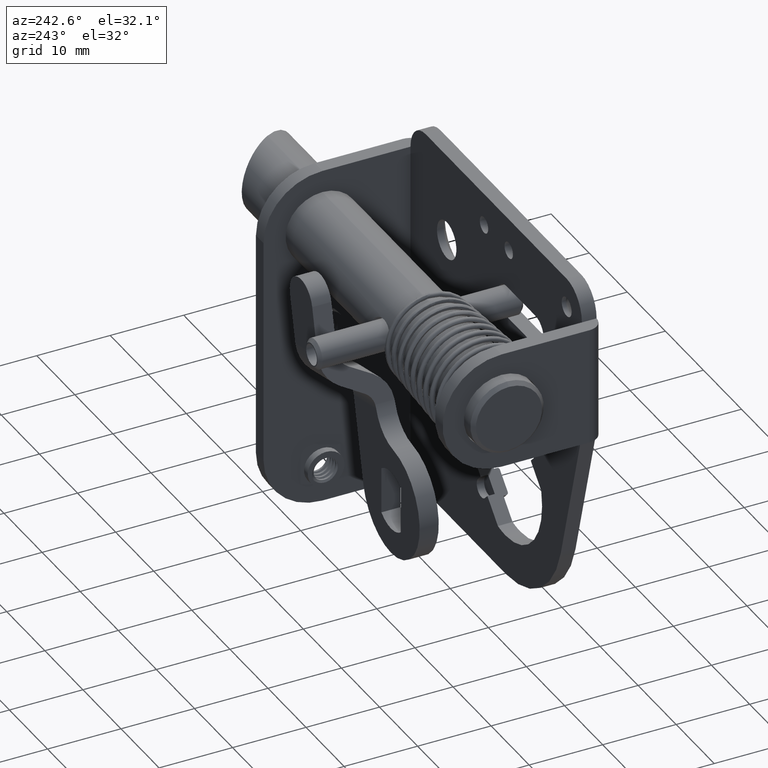
[diagram: clean part render]
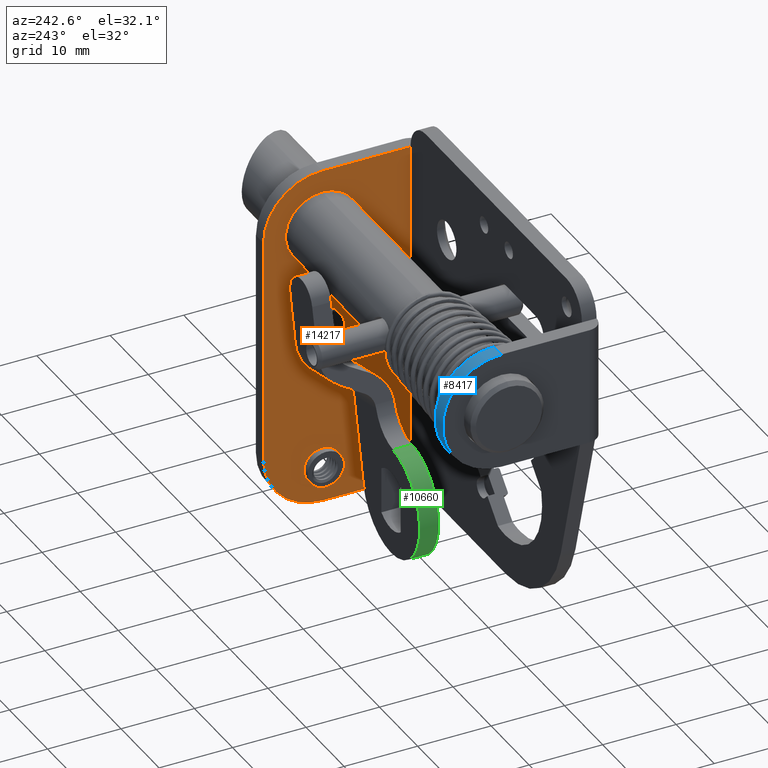
[diagram: same view with three faces highlighted in distinct colors, each labeled with its STEP entity id]
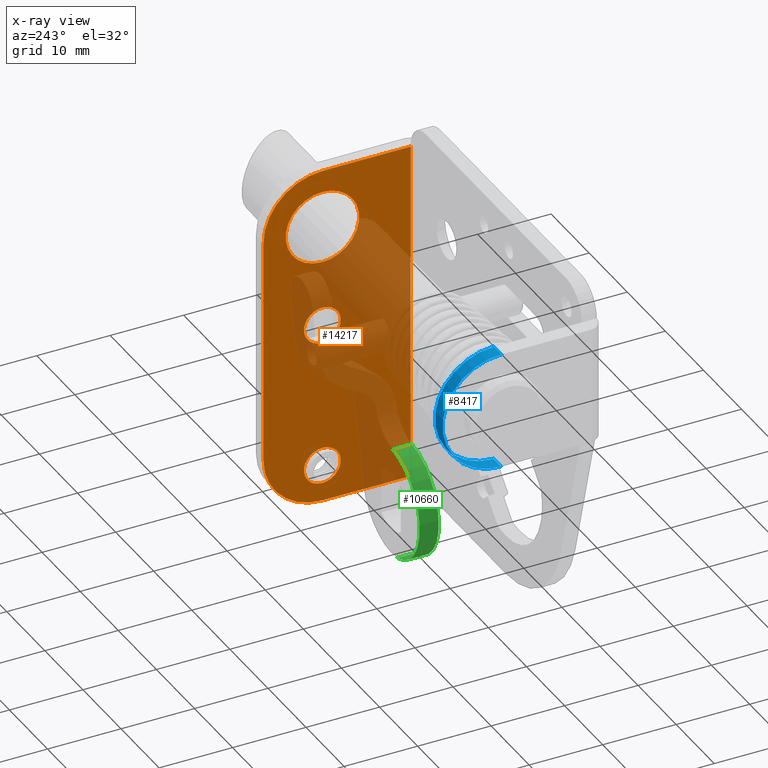
[diagram: x-ray of the same camera — body ghosted, the three highlighted faces saturated]
A machine part, auxiliary view with three faces highlighted in distinct colors.
The next image is the same camera in x-ray (body ghosted, the three faces saturated) — at least one of them is partly hidden behind the body in this view.
Their STEP definitions:

[orange] entity #14217 — the highlighted planar face has unit normal (1, -0, 0).
#170 = CARTESIAN_POINT ( 'NONE',  ( -44.64999999990504900, -1.622483468336492400E-014, -1.749999999682359900 ) ) ;
#303 = VERTEX_POINT ( 'NONE', #8128 ) ;
#333 = LINE ( 'NONE', #11459, #4354 ) ;
#425 = AXIS2_PLACEMENT_3D ( 'NONE', #11179, #3848, #12416 ) ;
#483 = ORIENTED_EDGE ( 'NONE', *, *, #7564, .F. ) ;
#751 = EDGE_CURVE ( 'NONE', #2405, #5535, #11747, .T. ) ;
#1086 = ORIENTED_EDGE ( 'NONE', *, *, #13986, .F. ) ;
#1097 = FACE_OUTER_BOUND ( 'NONE', #4045, .T. ) ;
#1148 = CARTESIAN_POINT ( 'NONE',  ( -44.64999999990504900, -1.734723475976804600E-014, -20.74999999973155000 ) ) ;
#1341 = CIRCLE ( 'NONE', #13643, 2.500000000000002200 ) ;
#1489 = FACE_BOUND ( 'NONE', #13711, .T. ) ;
#1520 = LINE ( 'NONE', #11480, #8026 ) ;
#1742 = CARTESIAN_POINT ( 'NONE',  ( -44.64999999990504900, -1.734723475976804600E-014, -40.74999999973114500 ) ) ;
#1780 = CARTESIAN_POINT ( 'NONE',  ( -44.64999999990504900, -1.704107305998120800E-014, -43.24999999973115200 ) ) ;
#1846 = CIRCLE ( 'NONE', #6841, 2.499999999999998700 ) ;
#1870 = DIRECTION ( 'NONE',  ( -1.000000000000000000, 0.0000000000000000000, 0.0000000000000000000 ) ) ;
#1888 = VERTEX_POINT ( 'NONE', #14355 ) ;
#1943 = AXIS2_PLACEMENT_3D ( 'NONE', #1742, #10313, #2972 ) ;
#2026 = LINE ( 'NONE', #14728, #11796 ) ;
#2086 = ORIENTED_EDGE ( 'NONE', *, *, #4139, .T. ) ;
#2373 = DIRECTION ( 'NONE',  ( 0.0000000000000000000, 0.0000000000000000000, 1.000000000000000000 ) ) ;
#2405 = VERTEX_POINT ( 'NONE', #11198 ) ;
#2827 = DIRECTION ( 'NONE',  ( -1.000000000000000000, 0.0000000000000000000, 0.0000000000000000000 ) ) ;
#2897 = CARTESIAN_POINT ( 'NONE',  ( -44.64999999990504900, -1.734723475976804600E-014, -40.74999999973114500 ) ) ;
#2972 = DIRECTION ( 'NONE',  ( 0.0000000000000000000, 0.0000000000000000000, 1.000000000000000000 ) ) ;
#3085 = AXIS2_PLACEMENT_3D ( 'NONE', #4971, #13540, #6197 ) ;
#3460 = AXIS2_PLACEMENT_3D ( 'NONE', #9206, #1870, #10435 ) ;
#3660 = ORIENTED_EDGE ( 'NONE', *, *, #751, .T. ) ;
#3745 = EDGE_CURVE ( 'NONE', #4491, #11031, #1341, .T. ) ;
#3848 = DIRECTION ( 'NONE',  ( -1.000000000000000000, -0.0000000000000000000, -0.0000000000000000000 ) ) ;
#3983 = FACE_BOUND ( 'NONE', #11852, .T. ) ;
#4045 = EDGE_LOOP ( 'NONE', ( #13849, #8894, #11834, #5605, #483, #1086 ) ) ;
#4131 = DIRECTION ( 'NONE',  ( 0.0000000000000000000, 0.0000000000000000000, 1.000000000000000000 ) ) ;
#4139 = EDGE_CURVE ( 'NONE', #1888, #8718, #12050, .T. ) ;
#4155 = DIRECTION ( 'NONE',  ( -0.0000000000000000000, -0.0000000000000000000, -1.000000000000000000 ) ) ;
#4168 = ORIENTED_EDGE ( 'NONE', *, *, #13690, .T. ) ;
#4354 = VECTOR ( 'NONE', #7814, 1000.000000000000000 ) ;
#4355 = FACE_BOUND ( 'NONE', #15829, .T. ) ;
#4410 = EDGE_CURVE ( 'NONE', #10648, #13761, #1520, .T. ) ;
#4413 = PLANE ( 'NONE',  #5245 ) ;
#4491 = VERTEX_POINT ( 'NONE', #1780 ) ;
#4535 = CIRCLE ( 'NONE', #3085, 8.000000000000000000 ) ;
#4971 = CARTESIAN_POINT ( 'NONE',  ( -44.64999999990509800, 1.379278635749160100E-011, -37.75000000009934800 ) ) ;
#5245 = AXIS2_PLACEMENT_3D ( 'NONE', #5633, #11689, #15456 ) ;
#5482 = CARTESIAN_POINT ( 'NONE',  ( -44.64999999990509800, 1.379278635749160100E-011, -6.749999999995600000 ) ) ;
#5535 = VERTEX_POINT ( 'NONE', #6601 ) ;
#5605 = ORIENTED_EDGE ( 'NONE', *, *, #4410, .F. ) ;
#5633 = CARTESIAN_POINT ( 'NONE',  ( -44.64999999990509800, -985.9999999999860200, 1.250000000004400000 ) ) ;
#6145 = DIRECTION ( 'NONE',  ( 0.0000000000000000000, 1.000000000000000000, 0.0000000000000000000 ) ) ;
#6197 = DIRECTION ( 'NONE',  ( 0.0000000000000000000, 0.0000000000000000000, 1.000000000000000000 ) ) ;
#6601 = CARTESIAN_POINT ( 'NONE',  ( -44.64999999990504900, -1.734723475976804600E-014, -18.24999999973155000 ) ) ;
#6714 = DIRECTION ( 'NONE',  ( 0.0000000000000000000, 0.0000000000000000000, 1.000000000000000000 ) ) ;
#6716 = ORIENTED_EDGE ( 'NONE', *, *, #3745, .T. ) ;
#6841 = AXIS2_PLACEMENT_3D ( 'NONE', #1148, #9710, #2373 ) ;
#7012 = CARTESIAN_POINT ( 'NONE',  ( -44.64999999990509800, -7.999999999986229700, -6.749999999995600000 ) ) ;
#7082 = EDGE_CURVE ( 'NONE', #5535, #2405, #1846, .T. ) ;
#7192 = AXIS2_PLACEMENT_3D ( 'NONE', #10154, #2827, #11384 ) ;
#7564 = EDGE_CURVE ( 'NONE', #15466, #10648, #8934, .T. ) ;
#7604 = CARTESIAN_POINT ( 'NONE',  ( -44.64999999990509800, -7.999999999986229700, -37.75000000009934800 ) ) ;
#7781 = CIRCLE ( 'NONE', #1943, 2.500000000000002200 ) ;
#7814 = DIRECTION ( 'NONE',  ( -0.0000000000000000000, -0.0000000000000000000, -1.000000000000000000 ) ) ;
#8026 = VECTOR ( 'NONE', #4155, 1000.000000000000000 ) ;
#8128 = CARTESIAN_POINT ( 'NONE',  ( -44.64999999990509800, 1.377890856968378200E-011, -45.75000000009929800 ) ) ;
#8198 = VERTEX_POINT ( 'NONE', #7012 ) ;
#8718 = VERTEX_POINT ( 'NONE', #170 ) ;
#8769 = CIRCLE ( 'NONE', #10477, 8.000000000000000000 ) ;
#8894 = ORIENTED_EDGE ( 'NONE', *, *, #13479, .F. ) ;
#8934 = LINE ( 'NONE', #13676, #12950 ) ;
#8940 = VERTEX_POINT ( 'NONE', #7604 ) ;
#9206 = CARTESIAN_POINT ( 'NONE',  ( -44.64999999990504900, -1.561251128379124800E-014, -6.749999999682359900 ) ) ;
#9211 = CARTESIAN_POINT ( 'NONE',  ( -44.64999999990509800, 1.377890856968378200E-011, 1.250000000004400000 ) ) ;
#9710 = DIRECTION ( 'NONE',  ( -1.000000000000000000, -0.0000000000000000000, -0.0000000000000000000 ) ) ;
#9948 = EDGE_CURVE ( 'NONE', #303, #13761, #2026, .T. ) ;
#10154 = CARTESIAN_POINT ( 'NONE',  ( -44.64999999990504900, -1.561251128379124800E-014, -6.749999999682359900 ) ) ;
#10239 = EDGE_CURVE ( 'NONE', #11031, #4491, #7781, .T. ) ;
#10313 = DIRECTION ( 'NONE',  ( -1.000000000000000000, -0.0000000000000000000, -0.0000000000000000000 ) ) ;
#10435 = DIRECTION ( 'NONE',  ( 0.0000000000000000000, 0.0000000000000000000, 1.000000000000000000 ) ) ;
#10477 = AXIS2_PLACEMENT_3D ( 'NONE', #5482, #14053, #6714 ) ;
#10615 = ORIENTED_EDGE ( 'NONE', *, *, #7082, .T. ) ;
#10648 = VERTEX_POINT ( 'NONE', #10730 ) ;
#10730 = CARTESIAN_POINT ( 'NONE',  ( -44.64999999990509800, 12.00000000001368000, 1.250000000004400000 ) ) ;
#10815 = ORIENTED_EDGE ( 'NONE', *, *, #10239, .T. ) ;
#11031 = VERTEX_POINT ( 'NONE', #11730 ) ;
#11179 = CARTESIAN_POINT ( 'NONE',  ( -44.64999999990504900, -1.734723475976804600E-014, -20.74999999973155000 ) ) ;
#11198 = CARTESIAN_POINT ( 'NONE',  ( -44.64999999990504900, -1.704107305998120800E-014, -23.24999999973154600 ) ) ;
#11384 = DIRECTION ( 'NONE',  ( 0.0000000000000000000, 0.0000000000000000000, 1.000000000000000000 ) ) ;
#11459 = CARTESIAN_POINT ( 'NONE',  ( -44.64999999990509800, -7.999999999986229700, 1.250000000004400000 ) ) ;
#11460 = DIRECTION ( 'NONE',  ( -1.000000000000000000, -0.0000000000000000000, -0.0000000000000000000 ) ) ;
#11480 = CARTESIAN_POINT ( 'NONE',  ( -44.64999999990509800, 12.00000000001368000, -30.74999999973605100 ) ) ;
#11689 = DIRECTION ( 'NONE',  ( -1.000000000000000000, 0.0000000000000000000, 0.0000000000000000000 ) ) ;
#11730 = CARTESIAN_POINT ( 'NONE',  ( -44.64999999990504900, -1.734723475976804600E-014, -38.24999999973114500 ) ) ;
#11747 = CIRCLE ( 'NONE', #425, 2.499999999999998700 ) ;
#11796 = VECTOR ( 'NONE', #6145, 1000.000000000000000 ) ;
#11834 = ORIENTED_EDGE ( 'NONE', *, *, #9948, .T. ) ;
#11852 = EDGE_LOOP ( 'NONE', ( #10615, #3660 ) ) ;
#12050 = CIRCLE ( 'NONE', #3460, 5.000000000000000000 ) ;
#12134 = EDGE_CURVE ( 'NONE', #8198, #8940, #333, .T. ) ;
#12416 = DIRECTION ( 'NONE',  ( 0.0000000000000000000, 0.0000000000000000000, 1.000000000000000000 ) ) ;
#12950 = VECTOR ( 'NONE', #14922, 1000.000000000000000 ) ;
#13163 = CIRCLE ( 'NONE', #7192, 5.000000000000000000 ) ;
#13479 = EDGE_CURVE ( 'NONE', #303, #8940, #4535, .T. ) ;
#13540 = DIRECTION ( 'NONE',  ( -1.000000000000000000, -0.0000000000000000000, -0.0000000000000000000 ) ) ;
#13643 = AXIS2_PLACEMENT_3D ( 'NONE', #2897, #11460, #4131 ) ;
#13676 = CARTESIAN_POINT ( 'NONE',  ( -44.64999999990509800, -985.9999999999860200, 1.250000000004400000 ) ) ;
#13690 = EDGE_CURVE ( 'NONE', #8718, #1888, #13163, .T. ) ;
#13711 = EDGE_LOOP ( 'NONE', ( #2086, #4168 ) ) ;
#13761 = VERTEX_POINT ( 'NONE', #15088 ) ;
#13849 = ORIENTED_EDGE ( 'NONE', *, *, #12134, .T. ) ;
#13986 = EDGE_CURVE ( 'NONE', #8198, #15466, #8769, .T. ) ;
#14053 = DIRECTION ( 'NONE',  ( -1.000000000000000000, -0.0000000000000000000, -0.0000000000000000000 ) ) ;
#14217 = ADVANCED_FACE ( 'NONE', ( #1489, #3983, #4355, #1097 ), #4413, .F. ) ;
#14355 = CARTESIAN_POINT ( 'NONE',  ( -44.64999999990504900, -1.561251128379124800E-014, -11.74999999968236100 ) ) ;
#14728 = CARTESIAN_POINT ( 'NONE',  ( -44.64999999990509800, -985.9999999999860200, -45.75000000009929800 ) ) ;
#14922 = DIRECTION ( 'NONE',  ( 0.0000000000000000000, 1.000000000000000000, 0.0000000000000000000 ) ) ;
#15088 = CARTESIAN_POINT ( 'NONE',  ( -44.64999999990509800, 12.00000000001380100, -45.75000000009929800 ) ) ;
#15456 = DIRECTION ( 'NONE',  ( 0.0000000000000000000, 0.0000000000000000000, 1.000000000000000000 ) ) ;
#15466 = VERTEX_POINT ( 'NONE', #9211 ) ;
#15829 = EDGE_LOOP ( 'NONE', ( #10815, #6716 ) ) ;

[blue] entity #8417 — the highlighted cylindrical surface (partial cylindrical patch) has radius 8 mm, axis along (-1, 0, -0).
#266 = ORIENTED_EDGE ( 'NONE', *, *, #5949, .T. ) ;
#283 = DIRECTION ( 'NONE',  ( -1.474298114145788900E-012, 0.0000000000000000000, -1.000000000000000000 ) ) ;
#1457 = CARTESIAN_POINT ( 'NONE',  ( 0.3500000000707659800, 1.377890856968378200E-011, -14.74999999998060000 ) ) ;
#1490 = LINE ( 'NONE', #3318, #4738 ) ;
#1495 = EDGE_LOOP ( 'NONE', ( #266, #5099, #10750, #1599 ) ) ;
#1599 = ORIENTED_EDGE ( 'NONE', *, *, #11517, .T. ) ;
#2426 = CIRCLE ( 'NONE', #14984, 8.000000000000000000 ) ;
#2873 = VERTEX_POINT ( 'NONE', #4032 ) ;
#3239 = LINE ( 'NONE', #9330, #15520 ) ;
#3301 = EDGE_CURVE ( 'NONE', #12939, #2873, #3239, .T. ) ;
#3318 = CARTESIAN_POINT ( 'NONE',  ( 2.350000000071674800, 1.388993087214630100E-011, -14.74999999998360100 ) ) ;
#4032 = CARTESIAN_POINT ( 'NONE',  ( 0.3500000000707624800, 1.377890856968378200E-011, 1.249999999952392100 ) ) ;
#4714 = DIRECTION ( 'NONE',  ( 1.000000000000000000, -0.0000000000000000000, 2.168404344980090100E-016 ) ) ;
#4738 = VECTOR ( 'NONE', #10655, 1000.000000000000000 ) ;
#4772 = DIRECTION ( 'NONE',  ( 1.000000000000000000, 0.0000000000000000000, -1.505739977147185000E-012 ) ) ;
#5099 = ORIENTED_EDGE ( 'NONE', *, *, #7635, .T. ) ;
#5949 = EDGE_CURVE ( 'NONE', #11919, #9178, #1490, .T. ) ;
#6479 = CARTESIAN_POINT ( 'NONE',  ( 2.350000000071674800, 1.388993087214630100E-011, -14.74999999998360100 ) ) ;
#7618 = DIRECTION ( 'NONE',  ( -1.000000000000000000, 0.0000000000000000000, 1.474298114152519900E-012 ) ) ;
#7635 = EDGE_CURVE ( 'NONE', #9178, #12939, #2426, .T. ) ;
#8201 = AXIS2_PLACEMENT_3D ( 'NONE', #12054, #4714, #13281 ) ;
#8417 = ADVANCED_FACE ( 'NONE', ( #11600 ), #11236, .T. ) ;
#9178 = VERTEX_POINT ( 'NONE', #6479 ) ;
#9330 = CARTESIAN_POINT ( 'NONE',  ( 0.3500000000945280300, 1.388993087214630100E-011, 1.249999999946364000 ) ) ;
#10249 = AXIS2_PLACEMENT_3D ( 'NONE', #10934, #4772, #13339 ) ;
#10655 = DIRECTION ( 'NONE',  ( 1.000000000000000000, 0.0000000000000000000, -1.505739977147185000E-012 ) ) ;
#10750 = ORIENTED_EDGE ( 'NONE', *, *, #3301, .T. ) ;
#10934 = CARTESIAN_POINT ( 'NONE',  ( -19.64999999979525200, 1.379278635749160100E-011, -6.749999999950479600 ) ) ;
#11236 = CYLINDRICAL_SURFACE ( 'NONE', #10249, 8.000000000000000000 ) ;
#11517 = EDGE_CURVE ( 'NONE', #2873, #11919, #13571, .T. ) ;
#11600 = FACE_OUTER_BOUND ( 'NONE', #1495, .T. ) ;
#11704 = CARTESIAN_POINT ( 'NONE',  ( 2.350000000095265200, 1.388993087214630100E-011, 1.249999999943352000 ) ) ;
#11919 = VERTEX_POINT ( 'NONE', #1457 ) ;
#12054 = CARTESIAN_POINT ( 'NONE',  ( 0.3500000000707624800, 1.379278635749160100E-011, -6.749999999980589700 ) ) ;
#12716 = DIRECTION ( 'NONE',  ( -1.000000000000000000, 0.0000000000000000000, 1.505739977147315000E-012 ) ) ;
#12939 = VERTEX_POINT ( 'NONE', #11704 ) ;
#13281 = DIRECTION ( 'NONE',  ( 2.168404344971008900E-016, 0.0000000000000000000, -1.000000000000000000 ) ) ;
#13339 = DIRECTION ( 'NONE',  ( -1.505739977147868600E-012, 0.0000000000000000000, -1.000000000000000000 ) ) ;
#13571 = CIRCLE ( 'NONE', #8201, 8.000000000000000000 ) ;
#14969 = CARTESIAN_POINT ( 'NONE',  ( 2.350000000083475100, 1.379278635749160100E-011, -6.749999999983599800 ) ) ;
#14984 = AXIS2_PLACEMENT_3D ( 'NONE', #14969, #7618, #283 ) ;
#15520 = VECTOR ( 'NONE', #12716, 1000.000000000000000 ) ;

[green] entity #10660 — the highlighted cylindrical surface (partial cylindrical patch) has radius 7.5 mm, axis along (0, 1, -0).
#107 = ORIENTED_EDGE ( 'NONE', *, *, #4632, .T. ) ;
#697 = VECTOR ( 'NONE', #1254, 1000.000000000000000 ) ;
#875 = DIRECTION ( 'NONE',  ( 0.0000000000000000000, 0.0000000000000000000, -1.000000000000000000 ) ) ;
#935 = LINE ( 'NONE', #5248, #7473 ) ;
#949 = VERTEX_POINT ( 'NONE', #10148 ) ;
#1254 = DIRECTION ( 'NONE',  ( 0.0000000000000000000, -1.000000000000000000, 0.0000000000000000000 ) ) ;
#2158 = AXIS2_PLACEMENT_3D ( 'NONE', #5310, #13879, #6537 ) ;
#2385 = ORIENTED_EDGE ( 'NONE', *, *, #3631, .F. ) ;
#2822 = VERTEX_POINT ( 'NONE', #7658 ) ;
#2998 = CIRCLE ( 'NONE', #2158, 7.500000000000000000 ) ;
#3117 = CARTESIAN_POINT ( 'NONE',  ( 47.99999999980170200, 0.0000000000000000000, 4.002060904895190400E-010 ) ) ;
#3344 = CARTESIAN_POINT ( 'NONE',  ( 47.99999999980170200, 2.600000000001045000, -7.499999999599793900 ) ) ;
#3631 = EDGE_CURVE ( 'NONE', #9550, #7780, #935, .T. ) ;
#3912 = ORIENTED_EDGE ( 'NONE', *, *, #15175, .T. ) ;
#4357 = DIRECTION ( 'NONE',  ( 0.0000000000000000000, 0.0000000000000000000, -1.000000000000000000 ) ) ;
#4632 = EDGE_CURVE ( 'NONE', #949, #7780, #15896, .T. ) ;
#5248 = CARTESIAN_POINT ( 'NONE',  ( 47.99999999980170200, 201000.0000000000000, -7.499999999599793900 ) ) ;
#5253 = CARTESIAN_POINT ( 'NONE',  ( 47.99999999980170200, 0.0000000000000000000, -7.499999999599793900 ) ) ;
#5310 = CARTESIAN_POINT ( 'NONE',  ( 47.99999999980170200, 2.600000000001045000, 4.002060904895190400E-010 ) ) ;
#6537 = DIRECTION ( 'NONE',  ( 0.0000000000000000000, 0.0000000000000000000, 1.000000000000000000 ) ) ;
#6627 = FACE_OUTER_BOUND ( 'NONE', #15352, .T. ) ;
#6975 = CARTESIAN_POINT ( 'NONE',  ( 47.99999999980170200, 201000.0000000000000, 4.002060904895190400E-010 ) ) ;
#7260 = EDGE_CURVE ( 'NONE', #2822, #949, #10469, .T. ) ;
#7473 = VECTOR ( 'NONE', #8946, 1000.000000000000000 ) ;
#7658 = CARTESIAN_POINT ( 'NONE',  ( 50.09999999971819300, 2.600000000001045000, 7.200000000424579700 ) ) ;
#7780 = VERTEX_POINT ( 'NONE', #5253 ) ;
#8946 = DIRECTION ( 'NONE',  ( 0.0000000000000000000, -1.000000000000000000, 0.0000000000000000000 ) ) ;
#9327 = AXIS2_PLACEMENT_3D ( 'NONE', #6975, #13190, #875 ) ;
#9550 = VERTEX_POINT ( 'NONE', #3344 ) ;
#9817 = CARTESIAN_POINT ( 'NONE',  ( 50.09999999971819300, 201000.0000000000000, 7.200000000424579700 ) ) ;
#10148 = CARTESIAN_POINT ( 'NONE',  ( 50.09999999971819300, 0.0000000000000000000, 7.200000000424579700 ) ) ;
#10469 = LINE ( 'NONE', #9817, #697 ) ;
#10660 = ADVANCED_FACE ( 'NONE', ( #6627 ), #12393, .T. ) ;
#11682 = DIRECTION ( 'NONE',  ( 0.0000000000000000000, 1.000000000000000000, 0.0000000000000000000 ) ) ;
#11741 = ORIENTED_EDGE ( 'NONE', *, *, #7260, .T. ) ;
#12393 = CYLINDRICAL_SURFACE ( 'NONE', #9327, 7.500000000000000000 ) ;
#13190 = DIRECTION ( 'NONE',  ( 0.0000000000000000000, -1.000000000000000000, 0.0000000000000000000 ) ) ;
#13879 = DIRECTION ( 'NONE',  ( 0.0000000000000000000, -1.000000000000000000, 0.0000000000000000000 ) ) ;
#15175 = EDGE_CURVE ( 'NONE', #9550, #2822, #2998, .T. ) ;
#15352 = EDGE_LOOP ( 'NONE', ( #2385, #3912, #11741, #107 ) ) ;
#15782 = AXIS2_PLACEMENT_3D ( 'NONE', #3117, #11682, #4357 ) ;
#15896 = CIRCLE ( 'NONE', #15782, 7.500000000000000000 ) ;